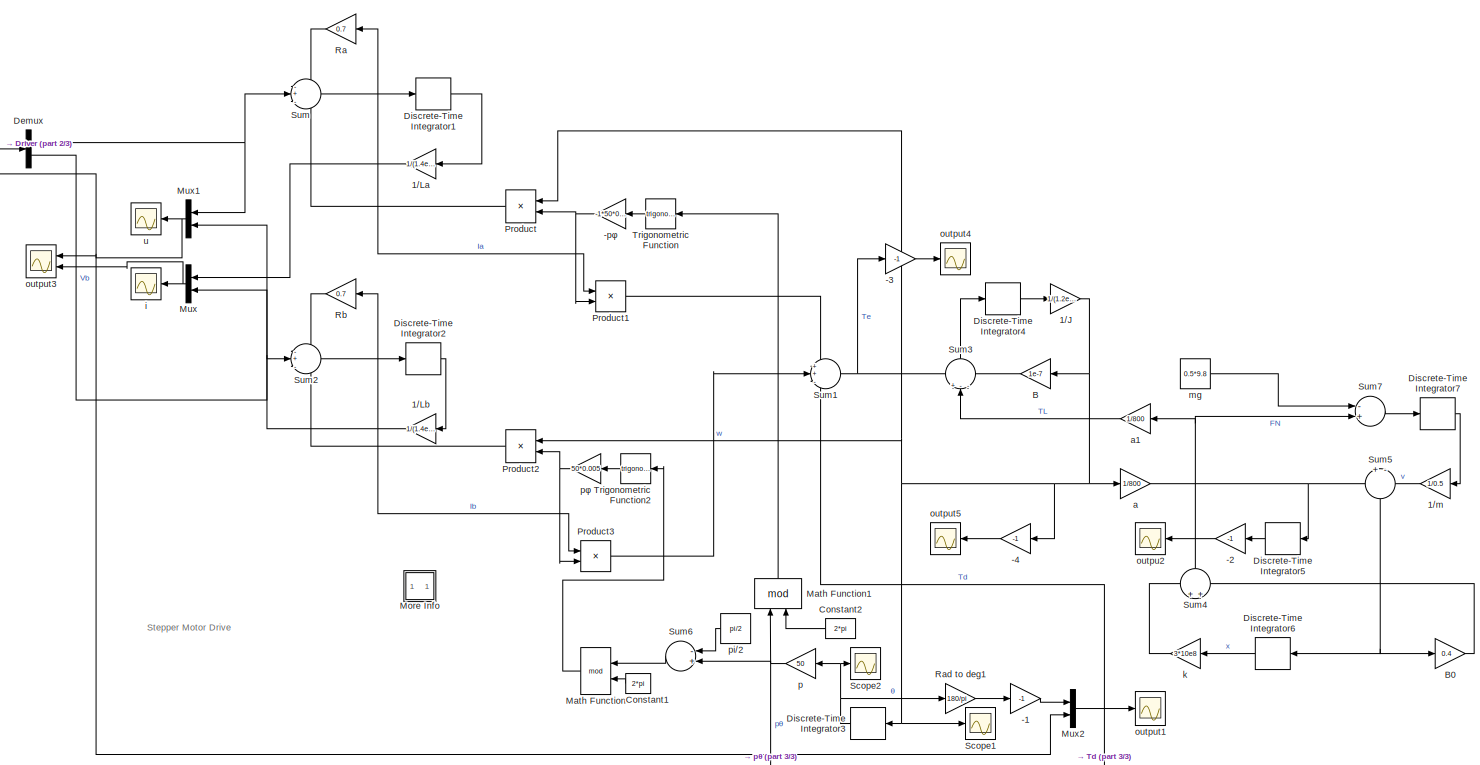
[diagram: root canvas - part 1/3, most of the canvas]
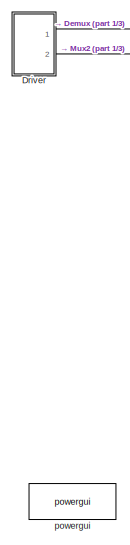
[diagram: root canvas - part 2/3, middle left region]
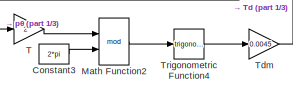
[diagram: root canvas - part 3/3, bottom right region]
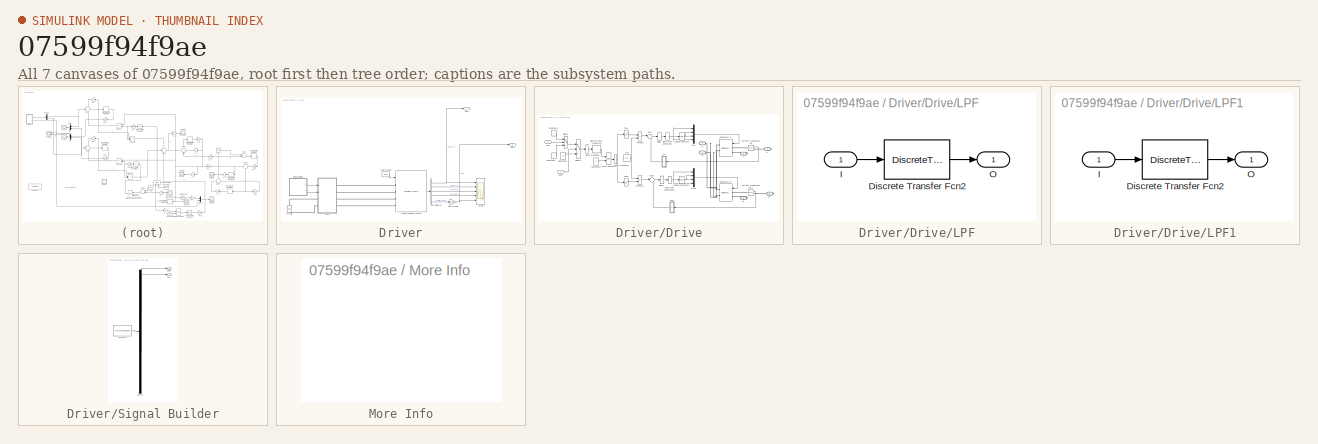
[diagram: thumbnail index - all 7 canvases of the model, root first then tree order]
MODEL slx_07599f94f9ae
KIND model
CONFIG AbsTol = auto
CONFIG FixedStep = Ts
CONFIG InitFcn = Ts=0.5*1e-8;
CONFIG MaxStep = 2e-6
CONFIG MinStep = auto
CONFIG PreLoadFcn = assignin('base','Ts',0.5*1e-8);
CONFIG RelTol = auto
CONFIG SampleTimeConstraint = Unconstrained
CONFIG Solver = FixedStepDiscrete
CONFIG SolverMode = Auto
CONFIG SolverName = FixedStepDiscrete
CONFIG StartTime = 0.0
CONFIG StopTime = 0.12
BLOCK [Gain] -1
  Gain = -1
  OutDataTypeStr = Inherit: Inherit via internal rule
  ParamDataTypeStr = Inherit: Inherit via internal rule
  SaturateOnIntegerOverflow = off
BLOCK [Gain] -2
  Gain = -1
  OutDataTypeStr = Inherit: Inherit via internal rule
  ParamDataTypeStr = Inherit: Inherit via internal rule
  SaturateOnIntegerOverflow = off
BLOCK [Gain] -3
  Gain = -1
  OutDataTypeStr = Inherit: Inherit via internal rule
  ParamDataTypeStr = Inherit: Inherit via internal rule
  SaturateOnIntegerOverflow = off
BLOCK [Gain] -4
  Gain = -1
  OutDataTypeStr = Inherit: Inherit via internal rule
  ParamDataTypeStr = Inherit: Inherit via internal rule
  SaturateOnIntegerOverflow = off
BLOCK [Gain] -pφ
  Gain = -1*50*0.005
  OutDataTypeStr = Inherit: Inherit via internal rule
  ParamDataTypeStr = Inherit: Inherit via internal rule
  SaturateOnIntegerOverflow = off
BLOCK [Gain] 1//J
  Gain = 1/(1.2e-7)
  OutDataTypeStr = Inherit: Inherit via internal rule
  ParamDataTypeStr = Inherit: Inherit via internal rule
  SaturateOnIntegerOverflow = off
BLOCK [Gain] 1//La
  Gain = 1/(1.4e-3)
  OutDataTypeStr = Inherit: Inherit via internal rule
  ParamDataTypeStr = Inherit: Inherit via internal rule
  SaturateOnIntegerOverflow = off
BLOCK [Gain] 1//Lb
  Gain = 1/(1.4e-3)
  OutDataTypeStr = Inherit: Inherit via internal rule
  ParamDataTypeStr = Inherit: Inherit via internal rule
  SaturateOnIntegerOverflow = off
BLOCK [Gain] 1//m
  Gain = 1/0.5
  OutDataTypeStr = Inherit: Inherit via internal rule
  ParamDataTypeStr = Inherit: Inherit via internal rule
  SaturateOnIntegerOverflow = off
BLOCK [Gain] B
  Gain = 1e-7
  OutDataTypeStr = Inherit: Inherit via internal rule
  ParamDataTypeStr = Inherit: Inherit via internal rule
  SaturateOnIntegerOverflow = off
BLOCK [Gain] B0
  Gain = 0.4
  OutDataTypeStr = Inherit: Inherit via internal rule
  ParamDataTypeStr = Inherit: Inherit via internal rule
  SaturateOnIntegerOverflow = off
BLOCK [Constant] Constant1
  Value = 2*pi
BLOCK [Constant] Constant2
  Value = 2*pi
BLOCK [Constant] Constant3
  Value = 2*pi
BLOCK [Demux] Demux
  DisplayOption = bar
  Outputs = 2
  Ports = [1, 2]
BLOCK [DiscreteIntegrator] Discrete-Time Integrator1
  ICPrevOutput = DiscIntNeverNeededParam
  ICPrevScaledInput = DiscIntNeverNeededParam
  Ports = [1, 1]
  SampleTime = Ts
BLOCK [DiscreteIntegrator] Discrete-Time Integrator2
  ICPrevOutput = DiscIntNeverNeededParam
  ICPrevScaledInput = DiscIntNeverNeededParam
  Ports = [1, 1]
  SampleTime = Ts
BLOCK [DiscreteIntegrator] Discrete-Time Integrator3
  ICPrevOutput = DiscIntNeverNeededParam
  ICPrevScaledInput = DiscIntNeverNeededParam
  Ports = [1, 1]
  SampleTime = Ts
BLOCK [DiscreteIntegrator] Discrete-Time Integrator4
  ICPrevOutput = DiscIntNeverNeededParam
  ICPrevScaledInput = DiscIntNeverNeededParam
  Ports = [1, 1]
  SampleTime = Ts
BLOCK [DiscreteIntegrator] Discrete-Time Integrator5
  ICPrevOutput = DiscIntNeverNeededParam
  ICPrevScaledInput = DiscIntNeverNeededParam
  Ports = [1, 1]
  SampleTime = Ts
BLOCK [DiscreteIntegrator] Discrete-Time Integrator6
  ICPrevOutput = DiscIntNeverNeededParam
  ICPrevScaledInput = DiscIntNeverNeededParam
  Ports = [1, 1]
  SampleTime = Ts
BLOCK [DiscreteIntegrator] Discrete-Time Integrator7
  ICPrevOutput = DiscIntNeverNeededParam
  ICPrevScaledInput = DiscIntNeverNeededParam
  Ports = [1, 1]
  SampleTime = Ts
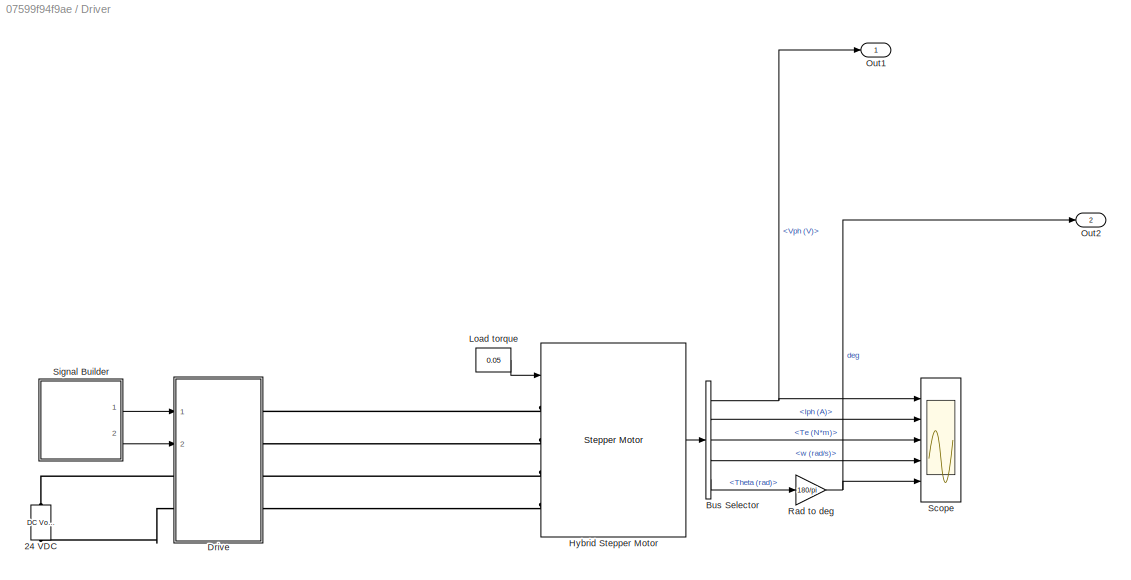
BLOCK [SubSystem] Driver
  Ports = [0, 2]
  RequestExecContextInheritance = off
  Variant = off
BLOCK [Reference] Driver/24 VDC  REF=powerlib/Electrical
Sources/DC Voltage Source
  Ports = [0, 0, 0, 0, 0, 1, 1]
  SourceBlock = powerlib/Electrical\nSources/DC Voltage Source
  SourceType = DC Voltage Source
BLOCK [BusSelector] Driver/Bus Selector
  OutputSignals = Vph (V),Iph (A),Te (N*m),w (rad/s),Theta (rad)
  Ports = [1, 5]
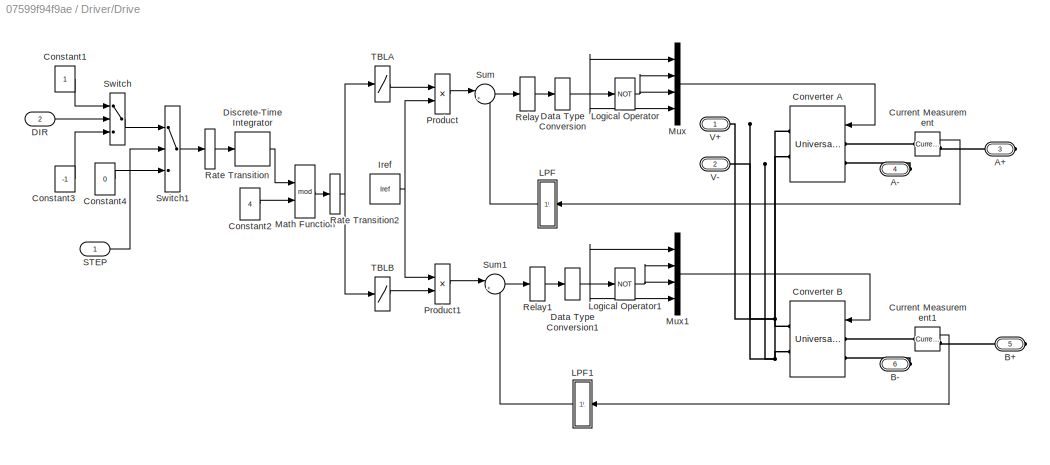
BLOCK [SubSystem] Driver/Drive
  Ports = [2, 0, 0, 0, 0, 2, 4]
  RequestExecContextInheritance = off
  Variant = off
BLOCK [PMIOPort] Driver/Drive/A+
  Port = 3
  Side = Right
BLOCK [PMIOPort] Driver/Drive/A-
  Port = 4
  Side = Right
BLOCK [PMIOPort] Driver/Drive/B+
  Port = 5
  Side = Right
BLOCK [PMIOPort] Driver/Drive/B-
  Port = 6
  Side = Right
BLOCK [Constant] Driver/Drive/Constant1
  SampleTime = Ts
BLOCK [Constant] Driver/Drive/Constant2
  SampleTime = Nstep*Ts
  Value = 4
BLOCK [Constant] Driver/Drive/Constant3
  SampleTime = Ts
  Value = -1
BLOCK [Constant] Driver/Drive/Constant4
  SampleTime = Ts
  Value = 0
BLOCK [Reference] Driver/Drive/Converter A  REF=powerlib/Power
Electronics/Universal Bridge
  Ports = [1, 0, 0, 0, 0, 2, 2]
  SourceBlock = powerlib/Power\nElectronics/Universal Bridge
  SourceType = Universal Bridge
BLOCK [Reference] Driver/Drive/Converter B  REF=powerlib/Power
Electronics/Universal Bridge
  Ports = [1, 0, 0, 0, 0, 2, 2]
  SourceBlock = powerlib/Power\nElectronics/Universal Bridge
  SourceType = Universal Bridge
BLOCK [Reference] Driver/Drive/Current Measurement  REF=powerlib/Measurements/Current Measurement
  Ports = [0, 1, 0, 0, 0, 1, 1]
  SourceBlock = powerlib/Measurements/Current Measurement
  SourceType = Current Measurement
BLOCK [Reference] Driver/Drive/Current Measurement1  REF=powerlib/Measurements/Current Measurement
  Ports = [0, 1, 0, 0, 0, 1, 1]
  SourceBlock = powerlib/Measurements/Current Measurement
  SourceType = Current Measurement
BLOCK [Inport] Driver/Drive/DIR
  IconDisplay = Port number
  Port = 2
BLOCK [DataTypeConversion] Driver/Drive/Data Type Conversion
  RndMeth = Floor
  SaturateOnIntegerOverflow = off
BLOCK [DataTypeConversion] Driver/Drive/Data Type Conversion1
  RndMeth = Floor
  SaturateOnIntegerOverflow = off
BLOCK [DiscreteIntegrator] Driver/Drive/Discrete-Time Integrator
  ICPrevOutput = DiscIntNeverNeededParam
  ICPrevScaledInput = DiscIntNeverNeededParam
  IntegratorMethod = Accumulation: Forward Euler
  Ports = [1, 1]
  SampleTime = Nstep*Ts
BLOCK [Constant] Driver/Drive/Iref
  SampleTime = Ts
  Value = Iref
BLOCK [SubSystem] Driver/Drive/LPF
  Ports = [1, 1]
  RequestExecContextInheritance = off
  Variant = off
BLOCK [DiscreteTransferFcn] Driver/Drive/LPF/Discrete Transfer Fcn2
  Denominator = DD
  InputPortMap = u0
  Numerator = NN
  Ports = [1, 1]
  SampleTime = Ts
BLOCK [Inport] Driver/Drive/LPF/I
  IconDisplay = Port number
BLOCK [Outport] Driver/Drive/LPF/O
  IconDisplay = Port number
BLOCK [SubSystem] Driver/Drive/LPF1
  Ports = [1, 1]
  RequestExecContextInheritance = off
  Variant = off
BLOCK [DiscreteTransferFcn] Driver/Drive/LPF1/Discrete Transfer Fcn2
  Denominator = DD
  InputPortMap = u0
  Numerator = NN
  Ports = [1, 1]
  SampleTime = Ts
BLOCK [Inport] Driver/Drive/LPF1/I
  IconDisplay = Port number
BLOCK [Outport] Driver/Drive/LPF1/O
  IconDisplay = Port number
BLOCK [Logic] Driver/Drive/Logical Operator
  AllPortsSameDT = off
  Operator = NOT
  OutDataTypeStr = boolean
  Ports = [1, 1]
BLOCK [Logic] Driver/Drive/Logical Operator1
  AllPortsSameDT = off
  Operator = NOT
  OutDataTypeStr = boolean
  Ports = [1, 1]
BLOCK [Math] Driver/Drive/Math Function
  Operator = mod
  Ports = [2, 1]
  SampleTime = Nstep*Ts
BLOCK [Mux] Driver/Drive/Mux
  DisplayOption = bar
  Ports = [4, 1]
BLOCK [Mux] Driver/Drive/Mux1
  DisplayOption = bar
  Ports = [4, 1]
BLOCK [Product] Driver/Drive/Product
  InputSameDT = off
  OutDataTypeStr = Inherit: Inherit via internal rule
  Ports = [2, 1]
  SaturateOnIntegerOverflow = off
BLOCK [Product] Driver/Drive/Product1
  InputSameDT = off
  OutDataTypeStr = Inherit: Inherit via internal rule
  Ports = [2, 1]
  SaturateOnIntegerOverflow = off
BLOCK [RateTransition] Driver/Drive/Rate Transition
BLOCK [RateTransition] Driver/Drive/Rate Transition2
BLOCK [Relay] Driver/Drive/Relay
  OffSwitchValue = -0.01
  OnSwitchValue = 0.01
BLOCK [Relay] Driver/Drive/Relay1
  OffSwitchValue = -0.01
  OnSwitchValue = 0.01
  OutDataTypeStr = Inherit: Inherit via back propagation
BLOCK [Inport] Driver/Drive/STEP
  IconDisplay = Port number
BLOCK [Sum] Driver/Drive/Sum
  IconShape = round
  InputSameDT = off
  Inputs = |+-
  Ports = [2, 1]
  SaturateOnIntegerOverflow = off
BLOCK [Sum] Driver/Drive/Sum1
  IconShape = round
  InputSameDT = off
  Inputs = |+-
  Ports = [2, 1]
  SaturateOnIntegerOverflow = off
BLOCK [Switch] Driver/Drive/Switch
  InputSameDT = off
  SampleTime = Ts
  SaturateOnIntegerOverflow = off
  Threshold = 0.5
  ZeroCross = off
BLOCK [Switch] Driver/Drive/Switch1
  InputSameDT = off
  SampleTime = Ts
  SaturateOnIntegerOverflow = off
  Threshold = 0.5
  ZeroCross = off
BLOCK [Lookup] Driver/Drive/TBLA
  InputValues = [0:3]
  SampleTime = Ts
  SaturateOnIntegerOverflow = off
  Table = [1 0 -1 0]
BLOCK [Lookup] Driver/Drive/TBLB
  InputValues = [0:3]
  SampleTime = Ts
  SaturateOnIntegerOverflow = off
  Table = [0 1 0 -1]
BLOCK [PMIOPort] Driver/Drive/V+
  Port = 1
  Side = Left
BLOCK [PMIOPort] Driver/Drive/V-
  Port = 2
  Side = Left
BLOCK [Reference] Driver/Hybrid Stepper Motor  REF=powerlib/Machines/Stepper Motor
  Ports = [1, 1, 0, 0, 0, 4]
  SourceBlock = powerlib/Machines/Stepper Motor
  SourceType = Stepper Motor
BLOCK [Constant] Driver/Load torque
  Value = 0.05
BLOCK [Outport] Driver/Out1
  IconDisplay = Port number
BLOCK [Outport] Driver/Out2
  IconDisplay = Port number
  Port = 2
BLOCK [Gain] Driver/Rad to deg
  Gain = 180/pi
  OutDataTypeStr = Inherit: Inherit via internal rule
  ParamDataTypeStr = Inherit: Inherit via internal rule
  SaturateOnIntegerOverflow = off
BLOCK [Scope] Driver/Scope
  NumInputPorts = 5
  Ports = [5]
  ScopeSpecificationString = Simulink.scopes.TimeScopeBlockCfg('CurrentConfiguration', extmgr.ConfigurationSet(extmgr.Configuration('Core','General UI',true),extmgr.Configuration('Core','Source UI',true),extmgr.Configuration('Sources','WiredSimulink',true,'DataLoggingSaveFormat','Array','DataLoggingDecimation','1','DataLoggingDecimateData',true),extmgr.Configuration('Visuals','Time Domain',true,'SerializedDisplays',{struct('M...<+6427ch>
BLOCK [SubSystem] Driver/Signal Builder
  ClipboardFcn = sigbuilder_block('clipboard');
  CloseFcn = sigbuilder_block('close');
  ContinueFcn = sigbuilder_block('continue')
  CopyFcn = sigbuilder_block('copy');
  DeleteFcn = sigbuilder_block('delete');
  LoadFcn = sigbuilder_block('load');
  MaskHideContents = on
  ModelCloseFcn = sigbuilder_block('modelClose');
  NameChangeFcn = sigbuilder_block('namechange');
  OpenFcn = sigbuilder_block('open',[162.75 86.25 550.5 363.75 ]);
  PauseFcn = sigbuilder_block('pause')
  Ports = [0, 2]
  PreSaveFcn = sigbuilder_block('preSave');
  RequestExecContextInheritance = off
  StartFcn = sigbuilder_block('start');
  StopFcn = sigbuilder_block('stop');
  Tag = STV Subsys
  Variant = off
BLOCK [Outport] Driver/Signal Builder/DIR
  IconDisplay = Port number
  Port = 2
  Tag = STV Outport
BLOCK [Demux] Driver/Signal Builder/Demux
  Outputs = 2
  Ports = [1, 2]
  Tag = STV Demux
BLOCK [FromWorkspace] Driver/Signal Builder/FromWs
  SampleTime = 0
  Tag = STV FromWs
  VariableName = tuvar
  ZeroCross = on
BLOCK [Outport] Driver/Signal Builder/STEP
  IconDisplay = Port number
  Tag = STV Outport
BLOCK [Math] Math Function
  Operator = mod
  Ports = [2, 1]
BLOCK [Math] Math Function1
  Operator = mod
  Ports = [2, 1]
BLOCK [Math] Math Function2
  Operator = mod
  Ports = [2, 1]
BLOCK [SubSystem] More Info
  OpenFcn = showdemo(bdroot(gcb))
  Ports = []
  RequestExecContextInheritance = off
  Variant = off
BLOCK [Mux] Mux
  DisplayOption = bar
  Inputs = 2
  Ports = [2, 1]
BLOCK [Mux] Mux1
  DisplayOption = bar
  Inputs = 2
  Ports = [2, 1]
BLOCK [Mux] Mux2
  DisplayOption = bar
  Inputs = 2
  Ports = [2, 1]
BLOCK [Product] Product
  InputSameDT = off
  OutDataTypeStr = Inherit: Inherit via internal rule
  Ports = [2, 1]
  RndMeth = Floor
  SaturateOnIntegerOverflow = off
BLOCK [Product] Product1
  InputSameDT = off
  OutDataTypeStr = Inherit: Inherit via internal rule
  Ports = [2, 1]
  RndMeth = Floor
  SaturateOnIntegerOverflow = off
BLOCK [Product] Product2
  InputSameDT = off
  OutDataTypeStr = Inherit: Inherit via internal rule
  Ports = [2, 1]
  RndMeth = Floor
  SaturateOnIntegerOverflow = off
BLOCK [Product] Product3
  InputSameDT = off
  OutDataTypeStr = Inherit: Inherit via internal rule
  Ports = [2, 1]
  RndMeth = Floor
  SaturateOnIntegerOverflow = off
BLOCK [Gain] Ra
  Gain = 0.7
  OutDataTypeStr = Inherit: Inherit via internal rule
  ParamDataTypeStr = Inherit: Inherit via internal rule
  SaturateOnIntegerOverflow = off
BLOCK [Gain] Rad to deg1
  Gain = 180/pi
  OutDataTypeStr = Inherit: Inherit via internal rule
  ParamDataTypeStr = Inherit: Inherit via internal rule
  SaturateOnIntegerOverflow = off
BLOCK [Gain] Rb
  Gain = 0.7
  OutDataTypeStr = Inherit: Inherit via internal rule
  ParamDataTypeStr = Inherit: Inherit via internal rule
  SaturateOnIntegerOverflow = off
BLOCK [Scope] Scope1
  Ports = [1]
  ScopeSpecificationString = Simulink.scopes.TimeScopeBlockCfg('CurrentConfiguration', extmgr.ConfigurationSet(extmgr.Configuration('Core','General UI',true),extmgr.Configuration('Core','Source UI',true),extmgr.Configuration('Sources','WiredSimulink',true,'DataLoggingVariableName','ScopeData1'),extmgr.Configuration('Visuals','Time Domain',true,'SerializedDisplays',{struct('MinYLimReal','-233.82903','MaxYLimReal','229.95089','...<+1399ch>
BLOCK [Scope] Scope2
  Ports = [1]
  ScopeSpecificationString = Simulink.scopes.TimeScopeBlockCfg('CurrentConfiguration', extmgr.ConfigurationSet(extmgr.Configuration('Core','General UI',true),extmgr.Configuration('Core','Source UI',true),extmgr.Configuration('Sources','WiredSimulink',true,'DataLoggingVariableName','ScopeData2'),extmgr.Configuration('Visuals','Time Domain',true,'SerializedDisplays',{struct('MinYLimReal','-0.10968','MaxYLimReal','0.01708','YLab...<+1385ch>
BLOCK [Sum] Sum
  IconShape = round
  InputSameDT = off
  Inputs = -+-
  OutDataTypeStr = Inherit: Inherit via internal rule
  Ports = [3, 1]
  SaturateOnIntegerOverflow = off
BLOCK [Sum] Sum1
  IconShape = round
  InputSameDT = off
  Inputs = ++-
  OutDataTypeStr = Inherit: Inherit via internal rule
  Ports = [3, 1]
  SaturateOnIntegerOverflow = off
BLOCK [Sum] Sum2
  IconShape = round
  InputSameDT = off
  Inputs = -+-
  OutDataTypeStr = Inherit: Inherit via internal rule
  Ports = [3, 1]
  SaturateOnIntegerOverflow = off
BLOCK [Sum] Sum3
  IconShape = round
  InputSameDT = off
  Inputs = +--
  OutDataTypeStr = Inherit: Inherit via internal rule
  Ports = [3, 1]
  SaturateOnIntegerOverflow = off
BLOCK [Sum] Sum4
  IconShape = round
  InputSameDT = off
  OutDataTypeStr = Inherit: Inherit via internal rule
  Ports = [2, 1]
  SaturateOnIntegerOverflow = off
BLOCK [Sum] Sum5
  IconShape = round
  InputSameDT = off
  Inputs = +-
  OutDataTypeStr = Inherit: Inherit via internal rule
  Ports = [2, 1]
  SaturateOnIntegerOverflow = off
BLOCK [Sum] Sum6
  InputSameDT = off
  Inputs = -+
  OutDataTypeStr = Inherit: Inherit via internal rule
  Ports = [2, 1]
  SaturateOnIntegerOverflow = off
BLOCK [Sum] Sum7
  InputSameDT = off
  Inputs = -+
  OutDataTypeStr = Inherit: Inherit via internal rule
  Ports = [2, 1]
  SaturateOnIntegerOverflow = off
BLOCK [Gain] T
  Gain = 2
  OutDataTypeStr = Inherit: Inherit via internal rule
  ParamDataTypeStr = Inherit: Inherit via internal rule
  SaturateOnIntegerOverflow = off
BLOCK [Gain] Tdm
  Gain = 0.0045
  OutDataTypeStr = Inherit: Inherit via internal rule
  ParamDataTypeStr = Inherit: Inherit via internal rule
  SaturateOnIntegerOverflow = off
BLOCK [Trigonometry] Trigonometric Function
  Ports = [1, 1]
BLOCK [Trigonometry] Trigonometric Function2
  Ports = [1, 1]
BLOCK [Trigonometry] Trigonometric Function4
  Ports = [1, 1]
BLOCK [Gain] a
  Gain = 1/800
  OutDataTypeStr = Inherit: Inherit via internal rule
  ParamDataTypeStr = Inherit: Inherit via internal rule
  SaturateOnIntegerOverflow = off
BLOCK [Gain] a1
  Gain = 1/800
  OutDataTypeStr = Inherit: Inherit via internal rule
  ParamDataTypeStr = Inherit: Inherit via internal rule
  SaturateOnIntegerOverflow = off
BLOCK [Scope] i
  Ports = [1]
  ScopeSpecificationString = Simulink.scopes.TimeScopeBlockCfg('CurrentConfiguration', extmgr.ConfigurationSet(extmgr.Configuration('Core','General UI',true),extmgr.Configuration('Core','Source UI',true),extmgr.Configuration('Sources','WiredSimulink',true,'DataLoggingVariableName','ScopeData5'),extmgr.Configuration('Visuals','Time Domain',true,'SerializedDisplays',{struct('MinYLimReal','-4.36007','MaxYLimReal','5.26649','YLab...<+1393ch>
BLOCK [Gain] k
  Gain = 3*10e8
  OutDataTypeStr = Inherit: Inherit via internal rule
  ParamDataTypeStr = Inherit: Inherit via internal rule
  SaturateOnIntegerOverflow = off
BLOCK [Constant] mg
  Value = 0.5*9.8
BLOCK [Scope] outpu2
  Ports = [1]
  ScopeSpecificationString = Simulink.scopes.TimeScopeBlockCfg('CurrentConfiguration', extmgr.ConfigurationSet(extmgr.Configuration('Core','General UI',true),extmgr.Configuration('Core','Source UI',true),extmgr.Configuration('Sources','WiredSimulink',true,'DataLoggingVariableName','ScopeData1'),extmgr.Configuration('Visuals','Time Domain',true,'SerializedDisplays',{struct('MinYLimReal','-0.00003','MaxYLimReal','0.00031','YLab...<+1432ch>
BLOCK [Scope] output1
  Ports = [1]
  ScopeSpecificationString = Simulink.scopes.TimeScopeBlockCfg('CurrentConfiguration', extmgr.ConfigurationSet(extmgr.Configuration('Core','General UI',true),extmgr.Configuration('Core','Source UI',true),extmgr.Configuration('Sources','WiredSimulink',true,'DataLoggingVariableName','ScopeData1'),extmgr.Configuration('Visuals','Time Domain',true,'SerializedDisplays',{struct('MinYLimReal','-0.64281','MaxYLimReal','3.44742','YLab...<+1472ch>
BLOCK [Scope] output3
  NumInputPorts = 2
  Ports = [2]
  ScopeSpecificationString = Simulink.scopes.TimeScopeBlockCfg('CurrentConfiguration', extmgr.ConfigurationSet(extmgr.Configuration('Core','General UI',true),extmgr.Configuration('Core','Source UI',true),extmgr.Configuration('Sources','WiredSimulink',true,'DataLoggingVariableName','ScopeData2','DataLoggingLimitDataPoints',true,'DataLoggingSaveFormat','Array','DataLoggingDecimation','1','DataLoggingDecimateData',true),extmgr.C...<+1508ch>
BLOCK [Scope] output4
  Ports = [1]
  ScopeSpecificationString = Simulink.scopes.TimeScopeBlockCfg('CurrentConfiguration', extmgr.ConfigurationSet(extmgr.Configuration('Core','General UI',true),extmgr.Configuration('Core','Source UI',true),extmgr.Configuration('Sources','WiredSimulink',true,'DataLoggingVariableName','ScopeData3'),extmgr.Configuration('Visuals','Time Domain',true,'SerializedDisplays',{struct('MinYLimReal','-1.62692','MaxYLimReal','1.44645','YLab...<+1361ch>
BLOCK [Scope] output5
  Ports = [1]
  ScopeSpecificationString = Simulink.scopes.TimeScopeBlockCfg('CurrentConfiguration', extmgr.ConfigurationSet(extmgr.Configuration('Core','General UI',true),extmgr.Configuration('Core','Source UI',true),extmgr.Configuration('Sources','WiredSimulink',true,'DataLoggingVariableName','ScopeData4'),extmgr.Configuration('Visuals','Time Domain',true,'SerializedDisplays',{struct('MinYLimReal','-0.07371','MaxYLimReal','0.11158','YLab...<+1361ch>
BLOCK [Gain] p
  Gain = 50
  OutDataTypeStr = Inherit: Inherit via internal rule
  ParamDataTypeStr = Inherit: Inherit via internal rule
  SaturateOnIntegerOverflow = off
BLOCK [Constant] pi//2
  Value = pi/2
BLOCK [Reference] powergui  REF=powerlib/powergui
  Ports = []
  SourceBlock = powerlib/powergui
  SourceType = PSB option menu block
  UserDataPersistent = on
BLOCK [Gain] pφ
  Gain = 50*0.005
  OutDataTypeStr = Inherit: Inherit via internal rule
  ParamDataTypeStr = Inherit: Inherit via internal rule
  SaturateOnIntegerOverflow = off
BLOCK [Scope] u
  Ports = [1]
  ScopeSpecificationString = Simulink.scopes.TimeScopeBlockCfg('CurrentConfiguration', extmgr.ConfigurationSet(extmgr.Configuration('Core','General UI',true),extmgr.Configuration('Core','Source UI',true),extmgr.Configuration('Sources','WiredSimulink',true,'DataLoggingVariableName','ScopeData6','DataLoggingLimitDataPoints',true,'DataLoggingSaveFormat','Array','DataLoggingDecimation','1','DataLoggingDecimateData',true),extmgr.C...<+1502ch>
ANNOTATION (root): Stepper Motor Drive
LINE -1:1 -> Mux2:1
LINE -2:1 -> outpu2:1
LINE -3:1 -> output4:1
LINE -4:1 -> output5:1
NET -pφ:1 -> Product1:2, Product:2
NET 1//J:1 -> -4:1, B:1, Discrete-Time Integrator3:1, Product2:1, Product:1, Scope1:1, a:1
NET 1//La:1 -> Mux:1, Product1:1, Ra:1
NET 1//Lb:1 -> Mux:2, Product3:1, Rb:1
LINE 1//m:1 -> Sum5:2
LINE B0:1 -> Sum4:2
LINE B:1 -> Sum3:3
LINE Constant1:1 -> Math Function:2
LINE Constant2:1 -> Math Function1:2
LINE Constant3:1 -> Math Function2:2
NET Demux:1 -> Mux1:1, Sum:2
NET Demux:2 -> Mux1:2, Sum2:2
LINE Discrete-Time Integrator1:1 -> 1//La:1
LINE Discrete-Time Integrator2:1 -> 1//Lb:1
NET Discrete-Time Integrator3:1 -> Rad to deg1:1, Scope2:1, p:1
LINE Discrete-Time Integrator4:1 -> 1//J:1
LINE Discrete-Time Integrator5:1 -> -2:1
LINE Discrete-Time Integrator6:1 -> k:1
LINE Discrete-Time Integrator7:1 -> 1//m:1
NET Driver/Bus Selector:1 -> Driver/Out1:1, Driver/Scope:1
LINE Driver/Bus Selector:2 -> Driver/Scope:2
LINE Driver/Bus Selector:3 -> Driver/Scope:3
LINE Driver/Bus Selector:4 -> Driver/Scope:4
LINE Driver/Bus Selector:5 -> Driver/Rad to deg:1
LINE Driver/Drive/Constant1:1 -> Driver/Drive/Switch:1
LINE Driver/Drive/Constant2:1 -> Driver/Drive/Math Function:2
LINE Driver/Drive/Constant3:1 -> Driver/Drive/Switch:3
LINE Driver/Drive/Constant4:1 -> Driver/Drive/Switch1:3
LINE Driver/Drive/Current Measurement1:1 -> Driver/Drive/LPF1:1
LINE Driver/Drive/Current Measurement:1 -> Driver/Drive/LPF:1
LINE Driver/Drive/DIR:1 -> Driver/Drive/Switch:2
NET Driver/Drive/Data Type Conversion1:1 -> Driver/Drive/Logical Operator1:1, Driver/Drive/Mux1:1, Driver/Drive/Mux1:4
NET Driver/Drive/Data Type Conversion:1 -> Driver/Drive/Logical Operator:1, Driver/Drive/Mux:1, Driver/Drive/Mux:4
LINE Driver/Drive/Discrete-Time Integrator:1 -> Driver/Drive/Math Function:1
NET Driver/Drive/Iref:1 -> Driver/Drive/Product1:1, Driver/Drive/Product:2
LINE Driver/Drive/LPF/Discrete Transfer Fcn2:1 -> Driver/Drive/LPF/O:1
LINE Driver/Drive/LPF/I:1 -> Driver/Drive/LPF/Discrete Transfer Fcn2:1
LINE Driver/Drive/LPF1/Discrete Transfer Fcn2:1 -> Driver/Drive/LPF1/O:1
LINE Driver/Drive/LPF1/I:1 -> Driver/Drive/LPF1/Discrete Transfer Fcn2:1
LINE Driver/Drive/LPF1:1 -> Driver/Drive/Sum1:2
LINE Driver/Drive/LPF:1 -> Driver/Drive/Sum:2
NET Driver/Drive/Logical Operator1:1 -> Driver/Drive/Mux1:2, Driver/Drive/Mux1:3
NET Driver/Drive/Logical Operator:1 -> Driver/Drive/Mux:2, Driver/Drive/Mux:3
LINE Driver/Drive/Math Function:1 -> Driver/Drive/Rate Transition2:1
LINE Driver/Drive/Mux1:1 -> Driver/Drive/Converter B:1
LINE Driver/Drive/Mux:1 -> Driver/Drive/Converter A:1
LINE Driver/Drive/Product1:1 -> Driver/Drive/Sum1:1
LINE Driver/Drive/Product:1 -> Driver/Drive/Sum:1
NET Driver/Drive/Rate Transition2:1 -> Driver/Drive/TBLA:1, Driver/Drive/TBLB:1
LINE Driver/Drive/Rate Transition:1 -> Driver/Drive/Discrete-Time Integrator:1
LINE Driver/Drive/Relay1:1 -> Driver/Drive/Data Type Conversion1:1
LINE Driver/Drive/Relay:1 -> Driver/Drive/Data Type Conversion:1
LINE Driver/Drive/STEP:1 -> Driver/Drive/Switch1:2
LINE Driver/Drive/Sum1:1 -> Driver/Drive/Relay1:1
LINE Driver/Drive/Sum:1 -> Driver/Drive/Relay:1
LINE Driver/Drive/Switch1:1 -> Driver/Drive/Rate Transition:1
LINE Driver/Drive/Switch:1 -> Driver/Drive/Switch1:1
LINE Driver/Drive/TBLA:1 -> Driver/Drive/Product:1
LINE Driver/Drive/TBLB:1 -> Driver/Drive/Product1:2
LINE Driver/Hybrid Stepper Motor:1 -> Driver/Bus Selector:1
LINE Driver/Load torque:1 -> Driver/Hybrid Stepper Motor:1
NET Driver/Rad to deg:1 -> Driver/Out2:1, Driver/Scope:5
LINE Driver/Signal Builder/Demux:1 -> Driver/Signal Builder/STEP:1
LINE Driver/Signal Builder/Demux:2 -> Driver/Signal Builder/DIR:1
LINE Driver/Signal Builder/FromWs:1 -> Driver/Signal Builder/Demux:1
LINE Driver/Signal Builder:1 -> Driver/Drive:1
LINE Driver/Signal Builder:2 -> Driver/Drive:2
LINE Driver:1 -> Demux:1
LINE Driver:2 -> Mux2:2
LINE Math Function1:1 -> Trigonometric Function:1
LINE Math Function2:1 -> Trigonometric Function4:1
LINE Math Function:1 -> Trigonometric Function2:1
NET Mux1:1 -> output3:1, u:1
LINE Mux2:1 -> output1:1
NET Mux:1 -> i:1, output3:2
LINE Product1:1 -> Sum1:1
LINE Product2:1 -> Sum2:3
LINE Product3:1 -> Sum1:2
LINE Product:1 -> Sum:3
LINE Ra:1 -> Sum:1
LINE Rad to deg1:1 -> -1:1
LINE Rb:1 -> Sum2:1
NET Sum1:1 -> -3:1, Sum3:1
LINE Sum2:1 -> Discrete-Time Integrator2:1
LINE Sum3:1 -> Discrete-Time Integrator4:1
NET Sum4:1 -> Sum7:2, a1:1
NET Sum5:1 -> B0:1, Discrete-Time Integrator6:1
LINE Sum6:1 -> Math Function:1
LINE Sum7:1 -> Discrete-Time Integrator7:1
LINE Sum:1 -> Discrete-Time Integrator1:1
LINE T:1 -> Math Function2:1
LINE Tdm:1 -> Sum1:3
LINE Trigonometric Function2:1 -> pφ:1
LINE Trigonometric Function4:1 -> Tdm:1
LINE Trigonometric Function:1 -> -pφ:1
LINE a1:1 -> Sum3:2
NET a:1 -> Discrete-Time Integrator5:1, Sum5:1
LINE k:1 -> Sum4:1
LINE mg:1 -> Sum7:1
NET p:1 -> Math Function1:1, Sum6:2, T:1
LINE pi//2:1 -> Sum6:1
NET pφ:1 -> Product2:2, Product3:2
PLINE Driver/24 VDC:LConn1 -- Driver/Drive:LConn2
PLINE Driver/24 VDC:RConn1 -- Driver/Drive:LConn1
PLINE Driver/Drive/A+:RConn1 -- Driver/Drive/Current Measurement:RConn1
PLINE Driver/Drive/A-:RConn1 -- Driver/Drive/Converter A:LConn2
PLINE Driver/Drive/B+:RConn1 -- Driver/Drive/Current Measurement1:RConn1
PLINE Driver/Drive/B-:RConn1 -- Driver/Drive/Converter B:LConn2
PLINE Driver/Drive/Converter A:LConn1 -- Driver/Drive/Current Measurement:LConn1
PNET net1: Driver/Drive/Converter A:RConn1 -- Driver/Drive/Converter B:RConn1 -- Driver/Drive/V+:RConn1
PNET net2: Driver/Drive/Converter A:RConn2 -- Driver/Drive/Converter B:RConn2 -- Driver/Drive/V-:RConn1
PLINE Driver/Drive/Converter B:LConn1 -- Driver/Drive/Current Measurement1:LConn1
PLINE Driver/Drive:RConn1 -- Driver/Hybrid Stepper Motor:LConn1
PLINE Driver/Drive:RConn2 -- Driver/Hybrid Stepper Motor:LConn2
PLINE Driver/Drive:RConn3 -- Driver/Hybrid Stepper Motor:LConn3
PLINE Driver/Drive:RConn4 -- Driver/Hybrid Stepper Motor:LConn4
note: NET lines group one-source signal fan-out (src -> all destinations, sorted); 1:1 wires keep LINE; PNET lines group multi-terminal physical nets as a canonical sorted terminal list (undirected conserving connections); 2-terminal nets keep the pairwise PLINE form
